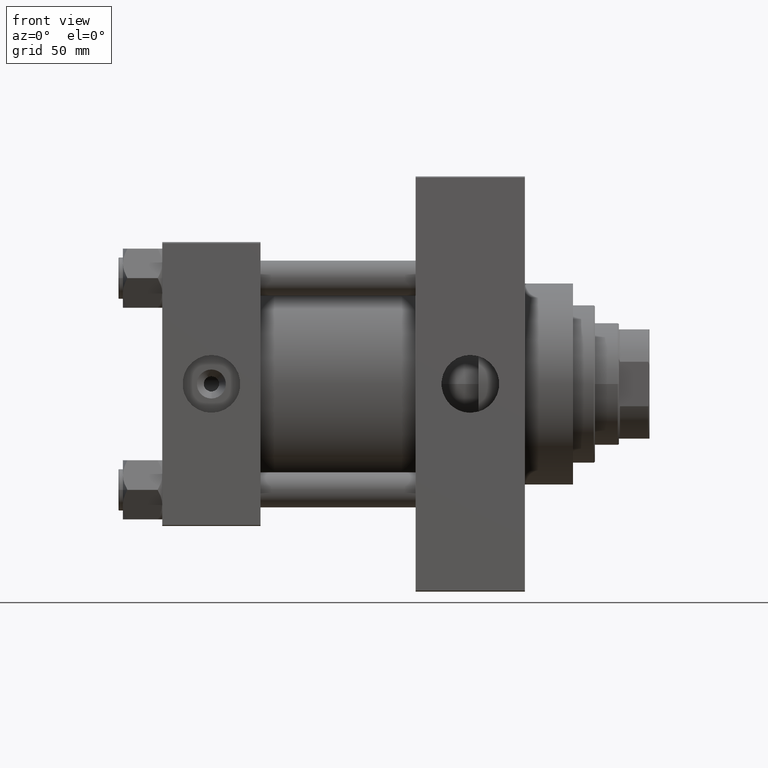
[diagram: clean part render]
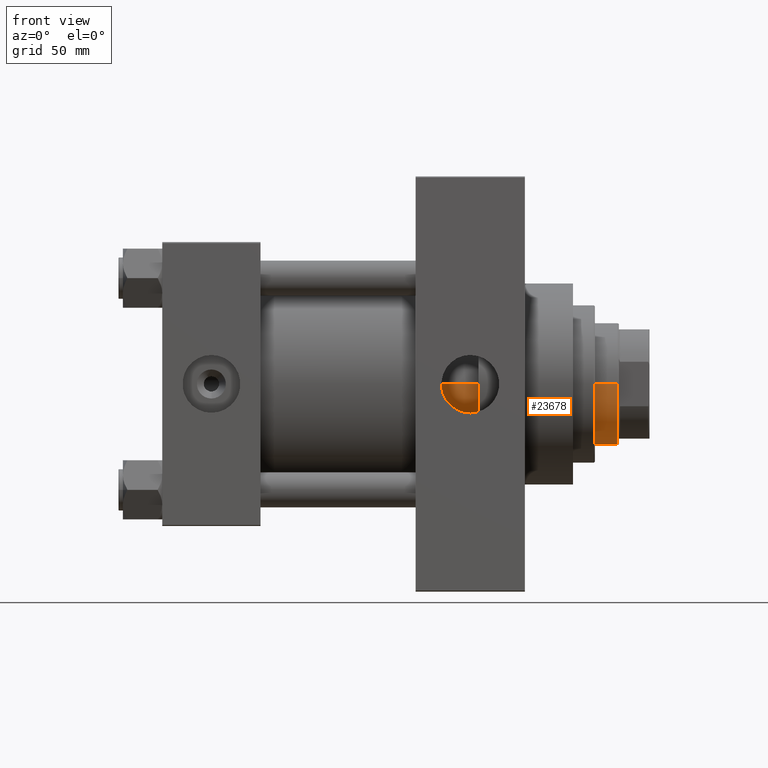
[diagram: same view with one face highlighted and labeled with its STEP entity id]
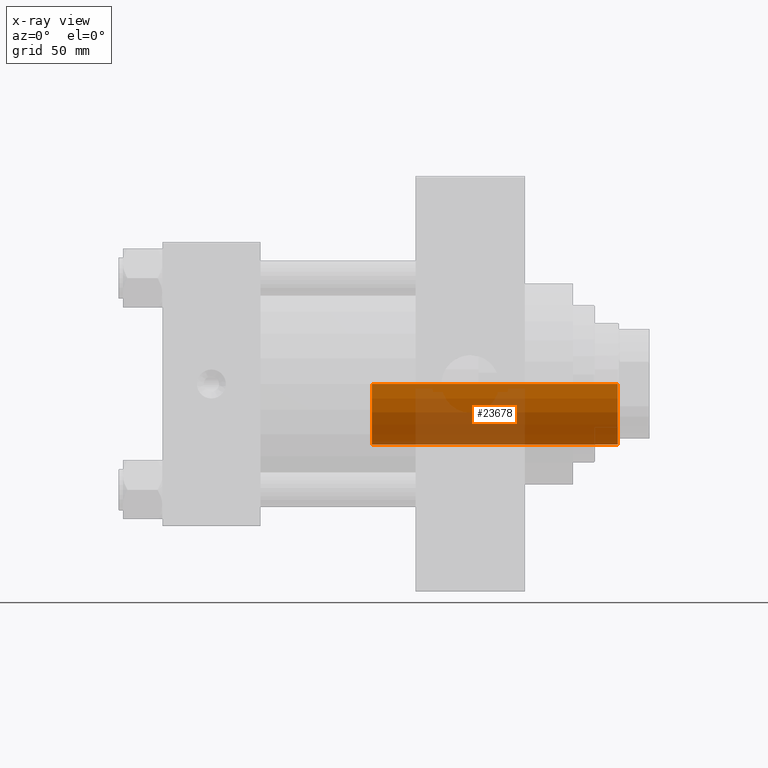
[diagram: x-ray of the same camera — body ghosted, the highlighted face saturated]
A machine part, front view. The second image highlights one B-rep face of the part: STEP entity #23678.
The next image is the same camera in x-ray: the body ghosted, the highlighted face saturated — about 35% of this face is hidden behind the body in this view.
In plain terms, the highlighted cylindrical surface (partial cylindrical patch) has radius 28 mm, axis along (-1, 0, 0).
Its self-contained STEP definition (entity closure, byte-faithful):
#1395 = CIRCLE ( 'NONE', #12151, 28.00000000000000000 ) ;
#3588 = ORIENTED_EDGE ( 'NONE', *, *, #16047, .T. ) ;
#11564 = CARTESIAN_POINT ( 'NONE',  ( 0.000000000000000000, 0.000000000000000000, 51.00000000000000000 ) ) ;
#12151 = AXIS2_PLACEMENT_3D ( 'NONE', #11564, #26296, #30662 ) ;
#13640 = VERTEX_POINT ( 'NONE', #15600 ) ;
#15600 = CARTESIAN_POINT ( 'NONE',  ( -28.00000000000000000, 0.000000000000000000, 51.00000000000000000 ) ) ;
#15789 = VERTEX_POINT ( 'NONE', #20336 ) ;
#16047 = EDGE_CURVE ( 'NONE', #39450, #13640, #1395, .T. ) ;
#16640 = DIRECTION ( 'NONE',  ( -1.000000000000000000, 0.000000000000000000, 0.000000000000000000 ) ) ;
#16862 = CYLINDRICAL_SURFACE ( 'NONE', #36969, 28.00000000000000000 ) ;
#17703 = DIRECTION ( 'NONE',  ( -0.000000000000000000, -0.000000000000000000, -1.000000000000000000 ) ) ;
#17916 = VERTEX_POINT ( 'NONE', #46272 ) ;
#18055 = EDGE_CURVE ( 'NONE', #15789, #13640, #39664, .T. ) ;
#18355 = DIRECTION ( 'NONE',  ( 0.000000000000000000, 0.000000000000000000, -1.000000000000000000 ) ) ;
#19623 = ORIENTED_EDGE ( 'NONE', *, *, #18055, .F. ) ;
#20336 = CARTESIAN_POINT ( 'NONE',  ( -28.00000000000000000, 0.000000000000000000, 163.5000000000000000 ) ) ;
#21069 = CARTESIAN_POINT ( 'NONE',  ( -28.00000000000000000, 0.000000000000000000, 164.0000000000000000 ) ) ;
#21333 = CARTESIAN_POINT ( 'NONE',  ( 28.00000000000000000, 3.429011037612589276E-15, 164.0000000000000000 ) ) ;
#21969 = VECTOR ( 'NONE', #17703, 1000.000000000000000 ) ;
#23170 = EDGE_LOOP ( 'NONE', ( #26232, #29422, #3588, #19623 ) ) ;
#23678 = ADVANCED_FACE ( 'NONE', ( #46820 ), #16862, .T. ) ;
#26228 = CIRCLE ( 'NONE', #28601, 28.00000000000000000 ) ;
#26232 = ORIENTED_EDGE ( 'NONE', *, *, #26417, .T. ) ;
#26296 = DIRECTION ( 'NONE',  ( 0.000000000000000000, 0.000000000000000000, 1.000000000000000000 ) ) ;
#26305 = DIRECTION ( 'NONE',  ( 1.000000000000000000, 0.000000000000000000, 0.000000000000000000 ) ) ;
#26417 = EDGE_CURVE ( 'NONE', #15789, #17916, #26228, .T. ) ;
#27279 = CARTESIAN_POINT ( 'NONE',  ( 28.00000000000000000, 3.429011037612589276E-15, 51.00000000000000000 ) ) ;
#27979 = DIRECTION ( 'NONE',  ( -0.000000000000000000, -0.000000000000000000, -1.000000000000000000 ) ) ;
#28601 = AXIS2_PLACEMENT_3D ( 'NONE', #36723, #18355, #26305 ) ;
#28795 = DIRECTION ( 'NONE',  ( -0.000000000000000000, -0.000000000000000000, -1.000000000000000000 ) ) ;
#29422 = ORIENTED_EDGE ( 'NONE', *, *, #40176, .T. ) ;
#30662 = DIRECTION ( 'NONE',  ( 1.000000000000000000, 0.000000000000000000, 0.000000000000000000 ) ) ;
#35361 = LINE ( 'NONE', #21333, #21969 ) ;
#36124 = VECTOR ( 'NONE', #28795, 1000.000000000000000 ) ;
#36723 = CARTESIAN_POINT ( 'NONE',  ( 0.000000000000000000, 0.000000000000000000, 163.5000000000000000 ) ) ;
#36969 = AXIS2_PLACEMENT_3D ( 'NONE', #39560, #27979, #16640 ) ;
#39450 = VERTEX_POINT ( 'NONE', #27279 ) ;
#39560 = CARTESIAN_POINT ( 'NONE',  ( 0.000000000000000000, 0.000000000000000000, 164.0000000000000000 ) ) ;
#39664 = LINE ( 'NONE', #21069, #36124 ) ;
#40176 = EDGE_CURVE ( 'NONE', #17916, #39450, #35361, .T. ) ;
#46272 = CARTESIAN_POINT ( 'NONE',  ( 28.00000000000000000, 3.429011037612589276E-15, 163.5000000000000000 ) ) ;
#46820 = FACE_OUTER_BOUND ( 'NONE', #23170, .T. ) ;